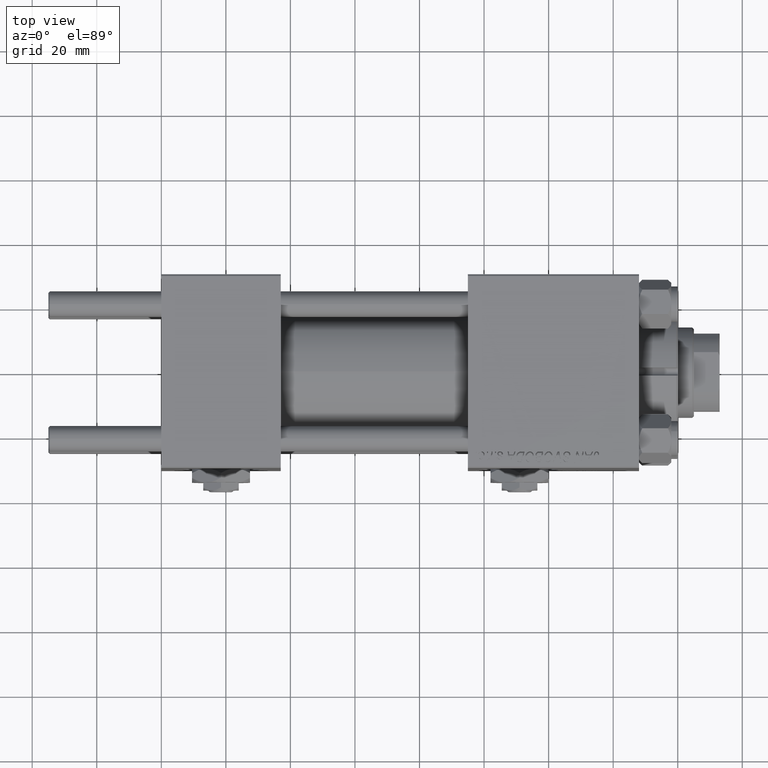
[diagram: clean part render]
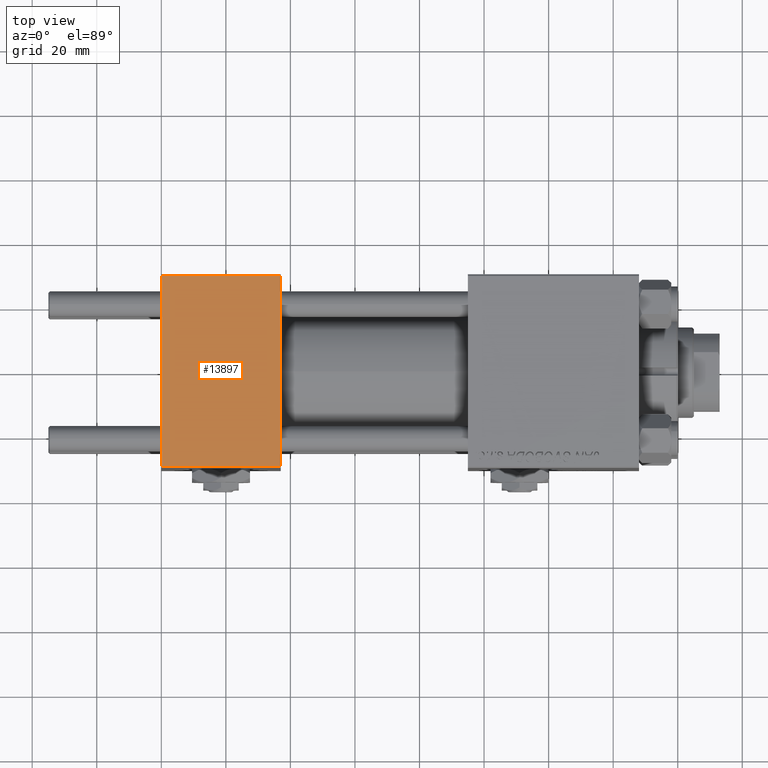
[diagram: same view with one face highlighted and labeled with its STEP entity id]
A machine part, top view. The second image highlights one B-rep face of the part: STEP entity #13897.
In plain terms, the highlighted planar face has unit normal (0, 0, -1).
Its self-contained STEP definition (entity closure, byte-faithful):
#952 = LINE ( 'NONE', #29451, #19944 ) ;
#1014 = VERTEX_POINT ( 'NONE', #32917 ) ;
#1741 = VERTEX_POINT ( 'NONE', #35059 ) ;
#3446 = EDGE_CURVE ( 'NONE', #1014, #50439, #952, .T. ) ;
#3571 = CARTESIAN_POINT ( 'NONE',  ( 0.000000000000000000, -29.49999999999998579, 29.99999999999999289 ) ) ;
#7400 = VECTOR ( 'NONE', #51571, 1000.000000000000000 ) ;
#10256 = FACE_OUTER_BOUND ( 'NONE', #29119, .T. ) ;
#11585 = CARTESIAN_POINT ( 'NONE',  ( 0.000000000000000000, 29.49999999999999289, 30.00000000000000000 ) ) ;
#12064 = VERTEX_POINT ( 'NONE', #41305 ) ;
#12263 = DIRECTION ( 'NONE',  ( 1.000000000000000000, 0.000000000000000000, 0.000000000000000000 ) ) ;
#13897 = ADVANCED_FACE ( 'NONE', ( #10256 ), #46642, .F. ) ;
#15555 = ORIENTED_EDGE ( 'NONE', *, *, #3446, .T. ) ;
#16221 = LINE ( 'NONE', #48397, #35186 ) ;
#16394 = ORIENTED_EDGE ( 'NONE', *, *, #46823, .T. ) ;
#18703 = CARTESIAN_POINT ( 'NONE',  ( 37.00000000000000000, 29.99999999999999289, 30.00000000000000000 ) ) ;
#19944 = VECTOR ( 'NONE', #33158, 1000.000000000000000 ) ;
#22682 = DIRECTION ( 'NONE',  ( -1.000000000000000000, 0.000000000000000000, 0.000000000000000000 ) ) ;
#22942 = LINE ( 'NONE', #11585, #36772 ) ;
#23654 = CARTESIAN_POINT ( 'NONE',  ( 37.00000000000000000, 29.99999999999999289, 30.00000000000000000 ) ) ;
#24434 = AXIS2_PLACEMENT_3D ( 'NONE', #18703, #42970, #51108 ) ;
#29119 = EDGE_LOOP ( 'NONE', ( #15555, #38257, #31489, #16394 ) ) ;
#29451 = CARTESIAN_POINT ( 'NONE',  ( 0.000000000000000000, 29.99999999999999289, 30.00000000000000000 ) ) ;
#29705 = EDGE_CURVE ( 'NONE', #12064, #1741, #39483, .T. ) ;
#31489 = ORIENTED_EDGE ( 'NONE', *, *, #29705, .F. ) ;
#32917 = CARTESIAN_POINT ( 'NONE',  ( 0.000000000000000000, 29.49999999999999289, 30.00000000000000000 ) ) ;
#33158 = DIRECTION ( 'NONE',  ( 0.000000000000000000, -1.000000000000000000, -1.156482317317871725E-16 ) ) ;
#35059 = CARTESIAN_POINT ( 'NONE',  ( 37.00000000000000000, -29.49999999999998579, 29.99999999999999289 ) ) ;
#35186 = VECTOR ( 'NONE', #12263, 1000.000000000000000 ) ;
#36772 = VECTOR ( 'NONE', #22682, 1000.000000000000000 ) ;
#38257 = ORIENTED_EDGE ( 'NONE', *, *, #50635, .T. ) ;
#39483 = LINE ( 'NONE', #23654, #7400 ) ;
#41305 = CARTESIAN_POINT ( 'NONE',  ( 37.00000000000000000, 29.49999999999999289, 30.00000000000000000 ) ) ;
#42970 = DIRECTION ( 'NONE',  ( 0.000000000000000000, 1.156482317317871725E-16, -1.000000000000000000 ) ) ;
#46642 = PLANE ( 'NONE',  #24434 ) ;
#46823 = EDGE_CURVE ( 'NONE', #12064, #1014, #22942, .T. ) ;
#48397 = CARTESIAN_POINT ( 'NONE',  ( 37.00000000000000000, -29.50000000000000000, 29.99999999999999289 ) ) ;
#50439 = VERTEX_POINT ( 'NONE', #3571 ) ;
#50635 = EDGE_CURVE ( 'NONE', #50439, #1741, #16221, .T. ) ;
#51108 = DIRECTION ( 'NONE',  ( 0.000000000000000000, 1.000000000000000000, 1.156482317317871725E-16 ) ) ;
#51571 = DIRECTION ( 'NONE',  ( 0.000000000000000000, -1.000000000000000000, -1.156482317317871725E-16 ) ) ;